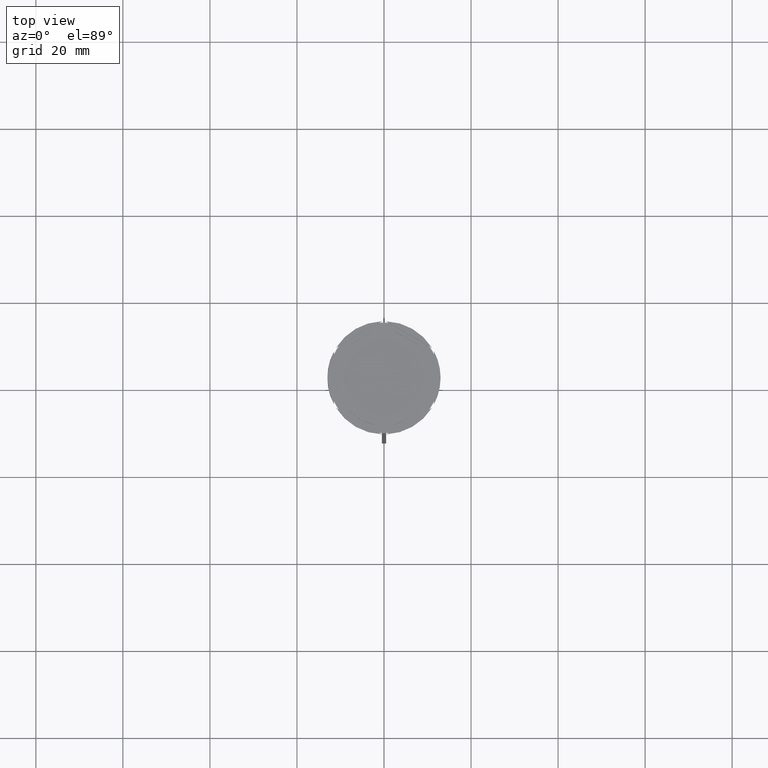
[diagram: clean part render]
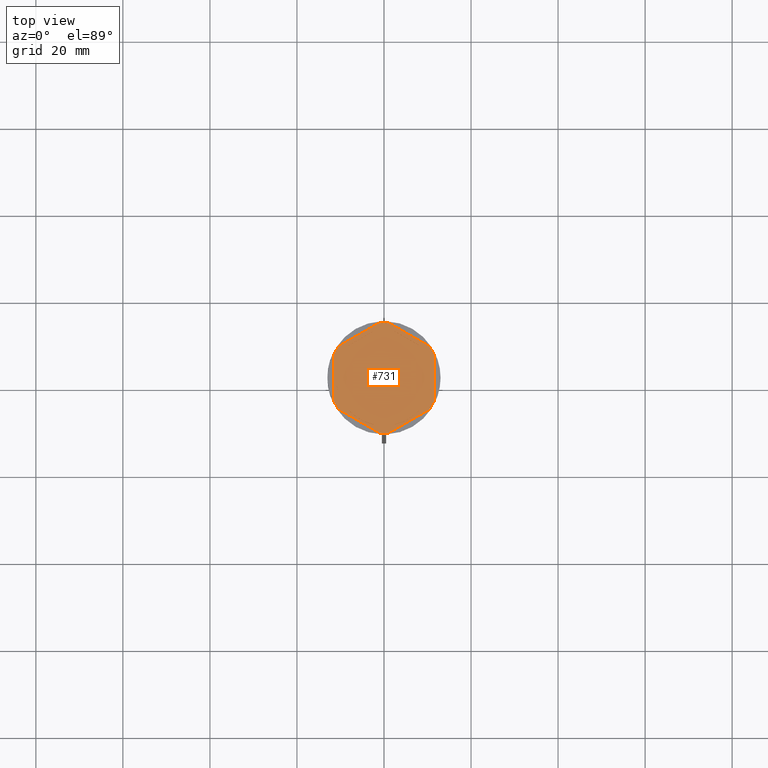
[diagram: same view with one face highlighted and labeled with its STEP entity id]
A machine part, top view. The second image highlights one B-rep face of the part: STEP entity #731.
In plain terms, the highlighted planar face has unit normal (0, 0, 1).
Its self-contained STEP definition (entity closure, byte-faithful):
#11 = LINE ( 'NONE', #207, #2482 ) ;
#17 = CARTESIAN_POINT ( 'NONE',  ( 10.49999999999999467, 3.278719262151012170, -1.000000000000000888 ) ) ;
#23 = CARTESIAN_POINT ( 'NONE',  ( 0.000000000000000000, 0.000000000000000000, -1.000000000000000000 ) ) ;
#34 = ORIENTED_EDGE ( 'NONE', *, *, #992, .T. ) ;
#45 = ORIENTED_EDGE ( 'NONE', *, *, #236, .F. ) ;
#52 = DIRECTION ( 'NONE',  ( 0.000000000000000000, 0.000000000000000000, 1.000000000000000000 ) ) ;
#79 = ORIENTED_EDGE ( 'NONE', *, *, #1095, .F. ) ;
#99 = DIRECTION ( 'NONE',  ( 1.000000000000000000, 0.000000000000000000, 0.000000000000000000 ) ) ;
#104 = EDGE_LOOP ( 'NONE', ( #526, #1547 ) ) ;
#113 = ORIENTED_EDGE ( 'NONE', *, *, #1149, .F. ) ;
#144 = EDGE_CURVE ( 'NONE', #670, #1407, #277, .T. ) ;
#149 = ORIENTED_EDGE ( 'NONE', *, *, #2322, .F. ) ;
#167 = EDGE_CURVE ( 'NONE', #1576, #911, #1307, .T. ) ;
#171 = EDGE_LOOP ( 'NONE', ( #113, #575 ) ) ;
#172 = CIRCLE ( 'NONE', #1145, 12.69999999999999929 ) ;
#190 = VERTEX_POINT ( 'NONE', #1297 ) ;
#207 = CARTESIAN_POINT ( 'NONE',  ( -11.50000000000000000, -6.639528095680696573, -1.000000000000000000 ) ) ;
#219 = EDGE_CURVE ( 'NONE', #337, #1931, #1099, .T. ) ;
#222 = CARTESIAN_POINT ( 'NONE',  ( 1.083095244168781557, 12.65373086058254160, -1.000000000000000000 ) ) ;
#236 = EDGE_CURVE ( 'NONE', #1094, #445, #660, .T. ) ;
#238 = CARTESIAN_POINT ( 'NONE',  ( 0.000000000000000000, 0.000000000000000000, -1.000000000000000000 ) ) ;
#243 = VERTEX_POINT ( 'NONE', #666 ) ;
#263 = AXIS2_PLACEMENT_3D ( 'NONE', #1206, #743, #582 ) ;
#264 = AXIS2_PLACEMENT_3D ( 'NONE', #2742, #807, #379 ) ;
#268 = AXIS2_PLACEMENT_3D ( 'NONE', #902, #52, #1973 ) ;
#277 = LINE ( 'NONE', #1334, #2285 ) ;
#279 = CARTESIAN_POINT ( 'NONE',  ( 11.49999999999999822, -6.639528095680694797, -1.000000000000000000 ) ) ;
#285 = CARTESIAN_POINT ( 'NONE',  ( -10.49999999999999822, 3.278719262151000624, -1.000000000000000888 ) ) ;
#328 = EDGE_CURVE ( 'NONE', #1821, #1449, #920, .T. ) ;
#337 = VERTEX_POINT ( 'NONE', #2253 ) ;
#345 = VERTEX_POINT ( 'NONE', #964 ) ;
#346 = CARTESIAN_POINT ( 'NONE',  ( -10.41690475583121689, 7.264853426459546348, -1.000000000000000000 ) ) ;
#355 = LINE ( 'NONE', #1855, #1930 ) ;
#363 = VERTEX_POINT ( 'NONE', #2480 ) ;
#367 = CARTESIAN_POINT ( 'NONE',  ( -8.089454172900135021, 7.453907108661106840, -1.000000000000000888 ) ) ;
#374 = FACE_BOUND ( 'NONE', #1032, .T. ) ;
#379 = DIRECTION ( 'NONE',  ( 1.000000000000000000, 1.243449787580175325E-14, 0.000000000000000000 ) ) ;
#380 = EDGE_CURVE ( 'NONE', #363, #1916, #1193, .T. ) ;
#382 = CARTESIAN_POINT ( 'NONE',  ( -10.49999999999999822, -6.062177826491068622, -1.000000000000000888 ) ) ;
#395 = EDGE_CURVE ( 'NONE', #445, #1094, #1361, .T. ) ;
#398 = DIRECTION ( 'NONE',  ( 0.8660254037844387076, -0.4999999999999997780, 0.000000000000000000 ) ) ;
#445 = VERTEX_POINT ( 'NONE', #367 ) ;
#462 = VERTEX_POINT ( 'NONE', #1917 ) ;
#465 = DIRECTION ( 'NONE',  ( -1.430775808321104180E-16, -1.000000000000000000, 0.000000000000000000 ) ) ;
#466 = DIRECTION ( 'NONE',  ( -0.000000000000000000, -0.000000000000000000, -1.000000000000000000 ) ) ;
#476 = DIRECTION ( 'NONE',  ( -0.8660254037844387076, -0.4999999999999999445, 0.000000000000000000 ) ) ;
#483 = CARTESIAN_POINT ( 'NONE',  ( -11.50000000000000000, -5.388877434122992582, -1.000000000000000000 ) ) ;
#490 = AXIS2_PLACEMENT_3D ( 'NONE', #1125, #2214, #1994 ) ;
#506 = ORIENTED_EDGE ( 'NONE', *, *, #2477, .F. ) ;
#517 = CARTESIAN_POINT ( 'NONE',  ( 0.000000000000000000, 0.000000000000000000, -1.000000000000000000 ) ) ;
#526 = ORIENTED_EDGE ( 'NONE', *, *, #1816, .F. ) ;
#531 = AXIS2_PLACEMENT_3D ( 'NONE', #1558, #1762, #2603 ) ;
#540 = FACE_BOUND ( 'NONE', #104, .T. ) ;
#554 = FACE_BOUND ( 'NONE', #2383, .T. ) ;
#564 = EDGE_LOOP ( 'NONE', ( #1283, #2631, #2670, #79, #1262, #747, #1738, #506, #994, #2634, #34, #1021 ) ) ;
#575 = ORIENTED_EDGE ( 'NONE', *, *, #1172, .F. ) ;
#582 = DIRECTION ( 'NONE',  ( 1.000000000000000000, 0.000000000000000000, 0.000000000000000000 ) ) ;
#589 = VECTOR ( 'NONE', #1282, 999.9999999999998863 ) ;
#610 = ORIENTED_EDGE ( 'NONE', *, *, #781, .F. ) ;
#617 = VERTEX_POINT ( 'NONE', #222 ) ;
#660 = CIRCLE ( 'NONE', #1421, 11.00000000000000000 ) ;
#666 = CARTESIAN_POINT ( 'NONE',  ( 10.41690475583121156, 7.264853426459550789, -1.000000000000000000 ) ) ;
#669 = DIRECTION ( 'NONE',  ( 1.306360520641008153E-16, 1.000000000000000000, 0.000000000000000000 ) ) ;
#670 = VERTEX_POINT ( 'NONE', #2165 ) ;
#678 = DIRECTION ( 'NONE',  ( 1.000000000000000000, -1.776356839400250465E-14, 0.000000000000000000 ) ) ;
#680 = LINE ( 'NONE', #279, #932 ) ;
#712 = CARTESIAN_POINT ( 'NONE',  ( 0.000000000000000000, 0.000000000000000000, -1.000000000000000000 ) ) ;
#722 = VERTEX_POINT ( 'NONE', #786 ) ;
#731 = ADVANCED_FACE ( 'NONE', ( #1661, #2501, #540, #374, #554, #1405, #2047 ), #1415, .T. ) ;
#743 = DIRECTION ( 'NONE',  ( 0.000000000000000000, 0.000000000000000000, 1.000000000000000000 ) ) ;
#747 = ORIENTED_EDGE ( 'NONE', *, *, #2457, .F. ) ;
#749 = DIRECTION ( 'NONE',  ( -0.8660254037844388186, 0.4999999999999997224, 0.000000000000000000 ) ) ;
#781 = EDGE_CURVE ( 'NONE', #1449, #2576, #918, .T. ) ;
#786 = CARTESIAN_POINT ( 'NONE',  ( 8.089454172900138573, 7.453907108661105063, -1.000000000000000888 ) ) ;
#807 = DIRECTION ( 'NONE',  ( -0.000000000000000000, -0.000000000000000000, -1.000000000000000000 ) ) ;
#837 = VECTOR ( 'NONE', #2222, 1000.000000000000000 ) ;
#902 = CARTESIAN_POINT ( 'NONE',  ( 0.000000000000000000, 0.000000000000000000, -1.000000000000000000 ) ) ;
#911 = VERTEX_POINT ( 'NONE', #1401 ) ;
#918 = CIRCLE ( 'NONE', #263, 11.00000000000000000 ) ;
#919 = DIRECTION ( 'NONE',  ( 1.000000000000000000, 0.000000000000000000, 0.000000000000000000 ) ) ;
#920 = LINE ( 'NONE', #2039, #2738 ) ;
#922 = DIRECTION ( 'NONE',  ( 0.8660254037844385966, 0.4999999999999999445, 0.000000000000000000 ) ) ;
#932 = VECTOR ( 'NONE', #669, 1000.000000000000000 ) ;
#949 = LINE ( 'NONE', #1835, #1470 ) ;
#964 = CARTESIAN_POINT ( 'NONE',  ( -2.410545827099876082, -10.73262637081210435, -1.000000000000000888 ) ) ;
#968 = VERTEX_POINT ( 'NONE', #17 ) ;
#992 = EDGE_CURVE ( 'NONE', #363, #1931, #1135, .T. ) ;
#994 = ORIENTED_EDGE ( 'NONE', *, *, #2351, .T. ) ;
#1005 = CARTESIAN_POINT ( 'NONE',  ( 0.000000000000000000, 0.000000000000000000, -1.000000000000000000 ) ) ;
#1013 = CIRCLE ( 'NONE', #2290, 11.00000000000000000 ) ;
#1021 = ORIENTED_EDGE ( 'NONE', *, *, #219, .F. ) ;
#1032 = EDGE_LOOP ( 'NONE', ( #1600, #149 ) ) ;
#1068 = DIRECTION ( 'NONE',  ( 1.000000000000000000, 0.000000000000000000, 0.000000000000000000 ) ) ;
#1069 = VERTEX_POINT ( 'NONE', #2184 ) ;
#1077 = DIRECTION ( 'NONE',  ( -0.000000000000000000, -0.000000000000000000, -1.000000000000000000 ) ) ;
#1090 = EDGE_CURVE ( 'NONE', #722, #1069, #1608, .T. ) ;
#1094 = VERTEX_POINT ( 'NONE', #2088 ) ;
#1095 = EDGE_CURVE ( 'NONE', #2284, #617, #1105, .T. ) ;
#1099 = CIRCLE ( 'NONE', #531, 12.69999999999999929 ) ;
#1105 = CIRCLE ( 'NONE', #264, 12.69999999999999929 ) ;
#1107 = DIRECTION ( 'NONE',  ( 0.000000000000000000, 0.000000000000000000, 1.000000000000000000 ) ) ;
#1125 = CARTESIAN_POINT ( 'NONE',  ( 0.000000000000000000, 0.000000000000000000, -1.000000000000000000 ) ) ;
#1127 = VERTEX_POINT ( 'NONE', #346 ) ;
#1135 = LINE ( 'NONE', #2279, #2567 ) ;
#1145 = AXIS2_PLACEMENT_3D ( 'NONE', #2167, #1077, #678 ) ;
#1149 = EDGE_CURVE ( 'NONE', #1276, #968, #2202, .T. ) ;
#1153 = DIRECTION ( 'NONE',  ( -0.000000000000000000, -0.000000000000000000, -1.000000000000000000 ) ) ;
#1172 = EDGE_CURVE ( 'NONE', #968, #1276, #2432, .T. ) ;
#1189 = DIRECTION ( 'NONE',  ( 1.000000000000000000, 0.000000000000000000, -0.000000000000000000 ) ) ;
#1193 = CIRCLE ( 'NONE', #1876, 12.69999999999999929 ) ;
#1206 = CARTESIAN_POINT ( 'NONE',  ( 0.000000000000000000, 0.000000000000000000, -1.000000000000000000 ) ) ;
#1229 = CARTESIAN_POINT ( 'NONE',  ( 10.41690475583121867, -7.264853426459537467, -1.000000000000000000 ) ) ;
#1262 = ORIENTED_EDGE ( 'NONE', *, *, #1936, .T. ) ;
#1271 = CARTESIAN_POINT ( 'NONE',  ( 8.089454172900135021, -7.453907108661109504, -1.000000000000000888 ) ) ;
#1276 = VERTEX_POINT ( 'NONE', #2651 ) ;
#1280 = AXIS2_PLACEMENT_3D ( 'NONE', #23, #1306, #2415 ) ;
#1282 = DIRECTION ( 'NONE',  ( 0.8660254037844387076, -0.4999999999999999445, 0.000000000000000000 ) ) ;
#1283 = ORIENTED_EDGE ( 'NONE', *, *, #2175, .T. ) ;
#1296 = CARTESIAN_POINT ( 'NONE',  ( -11.00000000000000000, 0.000000000000000000, -1.000000000000000000 ) ) ;
#1297 = CARTESIAN_POINT ( 'NONE',  ( -10.41690475583121334, -7.264853426459548125, -1.000000000000000000 ) ) ;
#1301 = ORIENTED_EDGE ( 'NONE', *, *, #1988, .F. ) ;
#1306 = DIRECTION ( 'NONE',  ( -0.000000000000000000, -0.000000000000000000, -1.000000000000000000 ) ) ;
#1307 = LINE ( 'NONE', #1535, #1692 ) ;
#1318 = DIRECTION ( 'NONE',  ( 0.000000000000000000, -1.000000000000000000, 0.000000000000000000 ) ) ;
#1331 = VECTOR ( 'NONE', #465, 1000.000000000000000 ) ;
#1332 = EDGE_CURVE ( 'NONE', #2576, #1821, #2476, .T. ) ;
#1334 = CARTESIAN_POINT ( 'NONE',  ( -11.50000000000000000, 6.639528095680691244, -1.000000000000000000 ) ) ;
#1336 = CIRCLE ( 'NONE', #1794, 11.00000000000000000 ) ;
#1346 = CARTESIAN_POINT ( 'NONE',  ( -1.734723475976807094E-15, 12.12435565298214080, -1.000000000000000888 ) ) ;
#1361 = LINE ( 'NONE', #1346, #837 ) ;
#1388 = CARTESIAN_POINT ( 'NONE',  ( -1.083095244168779780, -12.65373086058253982, -1.000000000000000000 ) ) ;
#1401 = CARTESIAN_POINT ( 'NONE',  ( 2.410545827099865868, -10.73262637081210791, -1.000000000000000888 ) ) ;
#1405 = FACE_BOUND ( 'NONE', #2093, .T. ) ;
#1407 = VERTEX_POINT ( 'NONE', #483 ) ;
#1415 = PLANE ( 'NONE',  #2422 ) ;
#1421 = AXIS2_PLACEMENT_3D ( 'NONE', #1545, #1107, #1068 ) ;
#1427 = DIRECTION ( 'NONE',  ( 0.000000000000000000, 0.000000000000000000, 1.000000000000000000 ) ) ;
#1428 = CARTESIAN_POINT ( 'NONE',  ( -1.083095244168783333, 12.65373086058254160, -1.000000000000000000 ) ) ;
#1446 = DIRECTION ( 'NONE',  ( 0.000000000000000000, 0.000000000000000000, 1.000000000000000000 ) ) ;
#1449 = VERTEX_POINT ( 'NONE', #285 ) ;
#1454 = LINE ( 'NONE', #382, #2119 ) ;
#1470 = VECTOR ( 'NONE', #749, 1000.000000000000000 ) ;
#1535 = CARTESIAN_POINT ( 'NONE',  ( -2.602085213965210642E-15, -12.12435565298214080, -1.000000000000000888 ) ) ;
#1545 = CARTESIAN_POINT ( 'NONE',  ( 0.000000000000000000, 0.000000000000000000, -1.000000000000000000 ) ) ;
#1547 = ORIENTED_EDGE ( 'NONE', *, *, #167, .F. ) ;
#1549 = CARTESIAN_POINT ( 'NONE',  ( 11.49999999999999822, 5.388877434122992582, -1.000000000000000000 ) ) ;
#1558 = CARTESIAN_POINT ( 'NONE',  ( 0.000000000000000000, 0.000000000000000000, -1.000000000000000000 ) ) ;
#1572 = CARTESIAN_POINT ( 'NONE',  ( 10.49999999999999289, -6.062177826491073063, -1.000000000000000888 ) ) ;
#1576 = VERTEX_POINT ( 'NONE', #1271 ) ;
#1600 = ORIENTED_EDGE ( 'NONE', *, *, #2669, .F. ) ;
#1608 = CIRCLE ( 'NONE', #490, 11.00000000000000000 ) ;
#1621 = DIRECTION ( 'NONE',  ( 0.000000000000000000, 0.000000000000000000, 1.000000000000000000 ) ) ;
#1661 = FACE_BOUND ( 'NONE', #2721, .T. ) ;
#1692 = VECTOR ( 'NONE', #476, 999.9999999999998863 ) ;
#1718 = ORIENTED_EDGE ( 'NONE', *, *, #1090, .F. ) ;
#1738 = ORIENTED_EDGE ( 'NONE', *, *, #144, .T. ) ;
#1741 = CARTESIAN_POINT ( 'NONE',  ( -10.49999999999999822, -3.278719262151000624, -1.000000000000000888 ) ) ;
#1762 = DIRECTION ( 'NONE',  ( -0.000000000000000000, -0.000000000000000000, -1.000000000000000000 ) ) ;
#1779 = CIRCLE ( 'NONE', #1280, 12.69999999999999929 ) ;
#1793 = DIRECTION ( 'NONE',  ( 0.000000000000000000, 1.000000000000000000, 0.000000000000000000 ) ) ;
#1794 = AXIS2_PLACEMENT_3D ( 'NONE', #712, #2032, #99 ) ;
#1799 = VERTEX_POINT ( 'NONE', #1549 ) ;
#1807 = DIRECTION ( 'NONE',  ( 1.000000000000000000, 0.000000000000000000, 0.000000000000000000 ) ) ;
#1816 = EDGE_CURVE ( 'NONE', #911, #1576, #1336, .T. ) ;
#1821 = VERTEX_POINT ( 'NONE', #1741 ) ;
#1835 = CARTESIAN_POINT ( 'NONE',  ( 11.50000000000000000, 6.639528095680698350, -1.000000000000000000 ) ) ;
#1851 = CARTESIAN_POINT ( 'NONE',  ( 0.000000000000000000, 0.000000000000000000, -1.000000000000000000 ) ) ;
#1855 = CARTESIAN_POINT ( 'NONE',  ( 0.000000000000000000, 13.27905619136138959, -1.000000000000000000 ) ) ;
#1873 = AXIS2_PLACEMENT_3D ( 'NONE', #238, #466, #919 ) ;
#1876 = AXIS2_PLACEMENT_3D ( 'NONE', #517, #1153, #1807 ) ;
#1916 = VERTEX_POINT ( 'NONE', #1388 ) ;
#1917 = CARTESIAN_POINT ( 'NONE',  ( -8.089454172900133244, -7.453907108661111280, -1.000000000000000888 ) ) ;
#1930 = VECTOR ( 'NONE', #2529, 1000.000000000000114 ) ;
#1931 = VERTEX_POINT ( 'NONE', #1229 ) ;
#1936 = EDGE_CURVE ( 'NONE', #2284, #1127, #355, .T. ) ;
#1973 = DIRECTION ( 'NONE',  ( 1.000000000000000000, 0.000000000000000000, 0.000000000000000000 ) ) ;
#1988 = EDGE_CURVE ( 'NONE', #1069, #722, #2116, .T. ) ;
#1994 = DIRECTION ( 'NONE',  ( 1.000000000000000000, 0.000000000000000000, 0.000000000000000000 ) ) ;
#2032 = DIRECTION ( 'NONE',  ( 0.000000000000000000, 0.000000000000000000, 1.000000000000000000 ) ) ;
#2039 = CARTESIAN_POINT ( 'NONE',  ( -10.49999999999999822, 6.062177826491068622, -1.000000000000000888 ) ) ;
#2047 = FACE_OUTER_BOUND ( 'NONE', #564, .T. ) ;
#2088 = CARTESIAN_POINT ( 'NONE',  ( -2.410545827099867200, 10.73262637081210613, -1.000000000000000888 ) ) ;
#2093 = EDGE_LOOP ( 'NONE', ( #45, #2761 ) ) ;
#2116 = LINE ( 'NONE', #2542, #589 ) ;
#2119 = VECTOR ( 'NONE', #2551, 1000.000000000000000 ) ;
#2165 = CARTESIAN_POINT ( 'NONE',  ( -11.50000000000000000, 5.388877434122992582, -1.000000000000000000 ) ) ;
#2167 = CARTESIAN_POINT ( 'NONE',  ( 0.000000000000000000, 0.000000000000000000, -1.000000000000000000 ) ) ;
#2175 = EDGE_CURVE ( 'NONE', #337, #1799, #680, .T. ) ;
#2184 = CARTESIAN_POINT ( 'NONE',  ( 2.410545827099861871, 10.73262637081210791, -1.000000000000000888 ) ) ;
#2202 = CIRCLE ( 'NONE', #2698, 11.00000000000000000 ) ;
#2214 = DIRECTION ( 'NONE',  ( 0.000000000000000000, 0.000000000000000000, 1.000000000000000000 ) ) ;
#2222 = DIRECTION ( 'NONE',  ( 0.8660254037844385966, 0.5000000000000001110, -0.000000000000000000 ) ) ;
#2253 = CARTESIAN_POINT ( 'NONE',  ( 11.49999999999999822, -5.388877434122996135, -1.000000000000000000 ) ) ;
#2279 = CARTESIAN_POINT ( 'NONE',  ( 5.612359739892467248E-18, -13.27905619136138959, -1.000000000000000000 ) ) ;
#2284 = VERTEX_POINT ( 'NONE', #1428 ) ;
#2285 = VECTOR ( 'NONE', #1318, 1000.000000000000000 ) ;
#2290 = AXIS2_PLACEMENT_3D ( 'NONE', #1851, #1621, #2667 ) ;
#2297 = DIRECTION ( 'NONE',  ( 1.000000000000000000, 0.000000000000000000, 0.000000000000000000 ) ) ;
#2322 = EDGE_CURVE ( 'NONE', #345, #462, #1454, .T. ) ;
#2326 = CARTESIAN_POINT ( 'NONE',  ( 0.000000000000000000, 0.000000000000000000, -1.000000000000000000 ) ) ;
#2351 = EDGE_CURVE ( 'NONE', #190, #1916, #11, .T. ) ;
#2383 = EDGE_LOOP ( 'NONE', ( #610, #2411, #2587 ) ) ;
#2411 = ORIENTED_EDGE ( 'NONE', *, *, #328, .F. ) ;
#2415 = DIRECTION ( 'NONE',  ( 1.000000000000000000, 7.105427357601001859E-15, 0.000000000000000000 ) ) ;
#2422 = AXIS2_PLACEMENT_3D ( 'NONE', #1005, #1446, #1189 ) ;
#2432 = LINE ( 'NONE', #1572, #1331 ) ;
#2457 = EDGE_CURVE ( 'NONE', #670, #1127, #2636, .T. ) ;
#2476 = CIRCLE ( 'NONE', #268, 11.00000000000000000 ) ;
#2477 = EDGE_CURVE ( 'NONE', #190, #1407, #1779, .T. ) ;
#2480 = CARTESIAN_POINT ( 'NONE',  ( 1.083095244168774673, -12.65373086058253982, -1.000000000000000000 ) ) ;
#2482 = VECTOR ( 'NONE', #398, 1000.000000000000227 ) ;
#2501 = FACE_BOUND ( 'NONE', #171, .T. ) ;
#2529 = DIRECTION ( 'NONE',  ( -0.8660254037844385966, -0.5000000000000001110, 0.000000000000000000 ) ) ;
#2542 = CARTESIAN_POINT ( 'NONE',  ( 10.49999999999999467, 6.062177826491072175, -1.000000000000000888 ) ) ;
#2551 = DIRECTION ( 'NONE',  ( -0.8660254037844384856, 0.5000000000000002220, 0.000000000000000000 ) ) ;
#2567 = VECTOR ( 'NONE', #922, 1000.000000000000114 ) ;
#2576 = VERTEX_POINT ( 'NONE', #1296 ) ;
#2578 = EDGE_CURVE ( 'NONE', #243, #1799, #172, .T. ) ;
#2587 = ORIENTED_EDGE ( 'NONE', *, *, #1332, .F. ) ;
#2603 = DIRECTION ( 'NONE',  ( 1.000000000000000000, 0.000000000000000000, 0.000000000000000000 ) ) ;
#2631 = ORIENTED_EDGE ( 'NONE', *, *, #2578, .F. ) ;
#2634 = ORIENTED_EDGE ( 'NONE', *, *, #380, .F. ) ;
#2636 = CIRCLE ( 'NONE', #1873, 12.69999999999999929 ) ;
#2651 = CARTESIAN_POINT ( 'NONE',  ( 10.49999999999999467, -3.278719262151014835, -1.000000000000000888 ) ) ;
#2667 = DIRECTION ( 'NONE',  ( 1.000000000000000000, 0.000000000000000000, 0.000000000000000000 ) ) ;
#2669 = EDGE_CURVE ( 'NONE', #462, #345, #1013, .T. ) ;
#2670 = ORIENTED_EDGE ( 'NONE', *, *, #2733, .T. ) ;
#2698 = AXIS2_PLACEMENT_3D ( 'NONE', #2326, #1427, #2297 ) ;
#2721 = EDGE_LOOP ( 'NONE', ( #1718, #1301 ) ) ;
#2733 = EDGE_CURVE ( 'NONE', #243, #617, #949, .T. ) ;
#2738 = VECTOR ( 'NONE', #1793, 1000.000000000000000 ) ;
#2742 = CARTESIAN_POINT ( 'NONE',  ( 0.000000000000000000, 0.000000000000000000, -1.000000000000000000 ) ) ;
#2761 = ORIENTED_EDGE ( 'NONE', *, *, #395, .F. ) ;